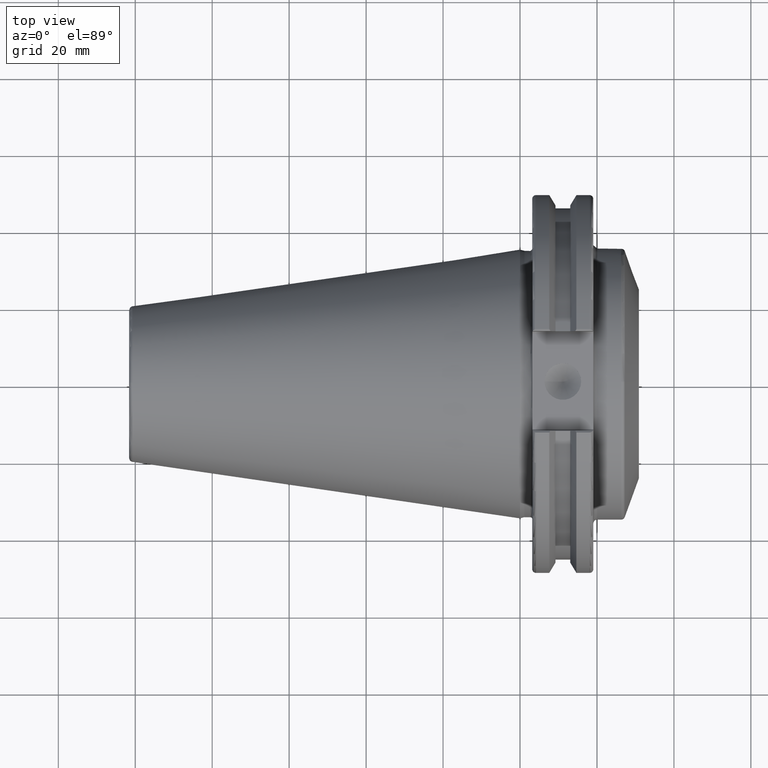
[diagram: clean part render]
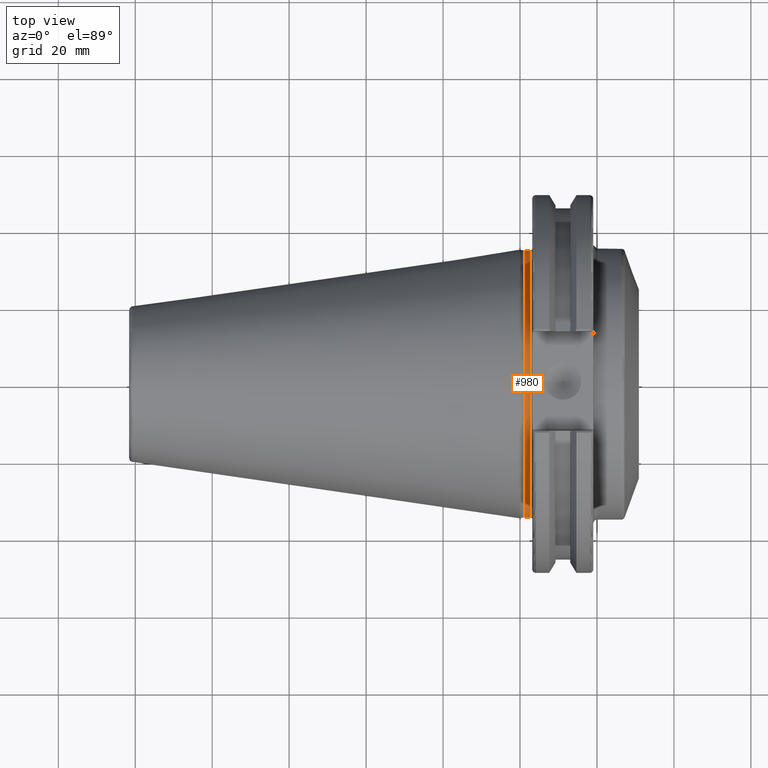
[diagram: same view with one face highlighted and labeled with its STEP entity id]
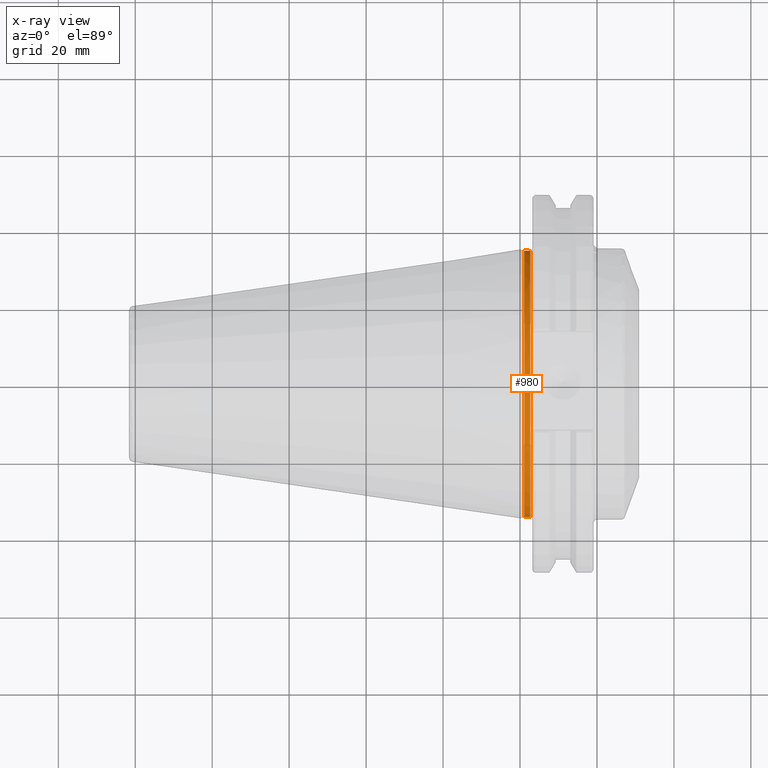
[diagram: x-ray of the same camera — body ghosted, the highlighted face saturated]
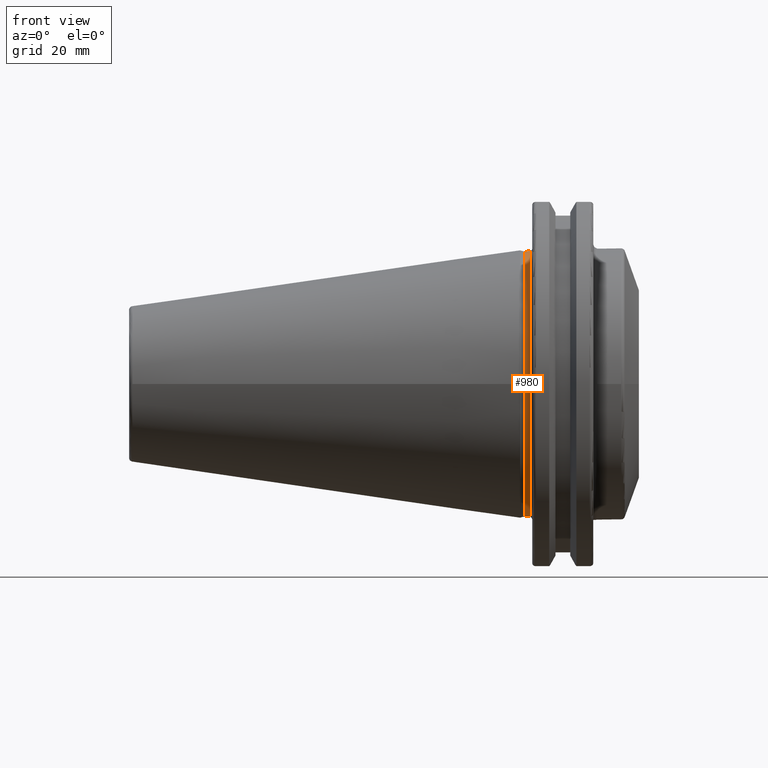
[diagram: same view with one face highlighted and labeled with its STEP entity id]
A machine part, top view. The second image highlights one B-rep face of the part: STEP entity #980.
The next image is the same camera in x-ray: the body ghosted, the highlighted face saturated — about 0% of this face is hidden behind the body in this view.
A second angle (front view) of the same face is appended — the face is thin or edge-on in the first view.
In plain terms, the highlighted cylindrical surface (bore or boss wall) has radius 34.625 mm, axis along (1, 0, 0).
Its self-contained STEP definition (entity closure, byte-faithful):
#106=LINE('',#1530,#174);
#174=VECTOR('',#1234,34.625);
#231=CYLINDRICAL_SURFACE('',#1080,34.625);
#250=FACE_OUTER_BOUND('',#310,.T.);
#310=EDGE_LOOP('',(#714,#715,#716,#717,#718));
#374=CIRCLE('',#1073,34.625);
#377=CIRCLE('',#1076,34.625);
#380=CIRCLE('',#1081,34.625);
#423=VERTEX_POINT('',#1496);
#424=VERTEX_POINT('',#1497);
#438=VERTEX_POINT('',#1529);
#529=EDGE_CURVE('',#423,#424,#374,.T.);
#532=EDGE_CURVE('',#424,#423,#377,.T.);
#545=EDGE_CURVE('',#423,#438,#106,.T.);
#546=EDGE_CURVE('',#438,#438,#380,.T.);
#714=ORIENTED_EDGE('',*,*,#529,.F.);
#715=ORIENTED_EDGE('',*,*,#545,.T.);
#716=ORIENTED_EDGE('',*,*,#546,.T.);
#717=ORIENTED_EDGE('',*,*,#545,.F.);
#718=ORIENTED_EDGE('',*,*,#532,.F.);
#980=ADVANCED_FACE('',(#250),#231,.T.);
#1073=AXIS2_PLACEMENT_3D('',#1498,#1208,#1209);
#1076=AXIS2_PLACEMENT_3D('',#1502,#1214,#1215);
#1080=AXIS2_PLACEMENT_3D('',#1528,#1232,#1233);
#1081=AXIS2_PLACEMENT_3D('',#1531,#1235,#1236);
#1208=DIRECTION('center_axis',(1.,0.,0.));
#1209=DIRECTION('ref_axis',(0.,-1.,1.83697019872103E-16));
#1214=DIRECTION('center_axis',(1.,0.,0.));
#1215=DIRECTION('ref_axis',(0.,-1.,1.83697019872103E-16));
#1232=DIRECTION('center_axis',(1.,0.,0.));
#1233=DIRECTION('ref_axis',(0.,1.,0.));
#1234=DIRECTION('',(-1.,0.,0.));
#1235=DIRECTION('center_axis',(1.,0.,0.));
#1236=DIRECTION('ref_axis',(0.,0.,-1.));
#1496=CARTESIAN_POINT('',(2.675,-34.625,-4.24033954204771E-15));
#1497=CARTESIAN_POINT('',(2.675,-4.24033954204771E-15,34.625));
#1498=CARTESIAN_POINT('Origin',(2.675,0.,0.));
#1502=CARTESIAN_POINT('Origin',(2.675,0.,0.));
#1528=CARTESIAN_POINT('Origin',(2.14730762113533,0.,0.));
#1529=CARTESIAN_POINT('',(1.11961524227064,-34.625,-4.24033954204771E-15));
#1530=CARTESIAN_POINT('',(2.14730762113533,-34.625,-4.24033954204771E-15));
#1531=CARTESIAN_POINT('Origin',(1.11961524227064,0.,0.));